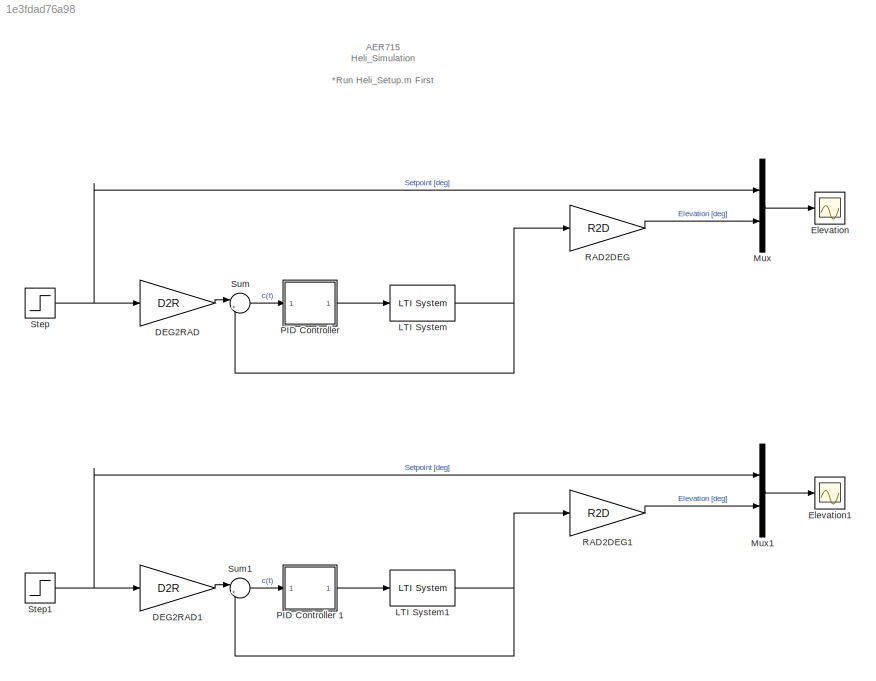
MODEL slx_1e3fdad76a98
KIND model
CONFIG AbsTol = auto
CONFIG EnableMultiTasking = on
CONFIG FixedStep = .01
CONFIG MaxStep = auto
CONFIG MinStep = auto
CONFIG RelTol = 1e-3
CONFIG SampleTimeConstraint = Unconstrained
CONFIG SolverName = ode1
CONFIG StartTime = 0.0
CONFIG StopTime = 30
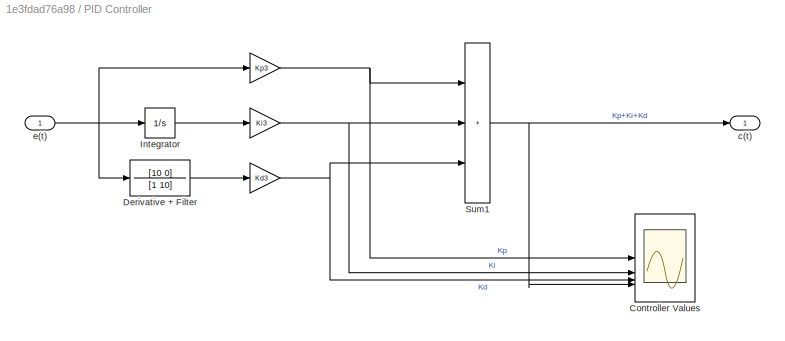
BLOCK [SubSystem]  PID Controller 
BLOCK [Gain]  PID Controller / 
  Gain = Kp3
BLOCK [Gain]  PID Controller /  
  Gain = Ki3
BLOCK [Gain]  PID Controller /   
  Gain = Kd3
BLOCK [Scope]  PID Controller /Controller Values
  Floating = off
  NumInputPorts = 4
  ScopeSpecificationString = C++SS(StrPVP('Location','[2244, 262, 3033, 896]'),StrPVP('Open','off'),MxPVP('AxesTitles',54,'struct(''axes1'',''%<SignalLabel>'',''axes2'',''%<SignalLabel>'',''axes3'',''%<SignalLabel>'',''axes4'',''%<SignalLabel>'')'),MxPVP('ScopeGraphics',57,'struct(''FigureColor'',''[0.501960784313725 0.501960784313725 0.501960784313725]'',''AxesColor'',''[1 1 1]'',''AxesTickColor'',''[0 0 0]'',''LineColors'',...<+496ch>
BLOCK [TransferFcn]  PID Controller /Derivative + Filter
  Denominator = [1 10]
  Numerator = [10 0]
BLOCK [Integrator]  PID Controller /Integrator
  LowerSaturationLimit = -30
  UpperSaturationLimit = 30
BLOCK [Sum]  PID Controller /Sum1
  IconShape = rectangular
  Inputs = +++
BLOCK [Outport]  PID Controller /c(t)
BLOCK [Inport]  PID Controller /e(t)
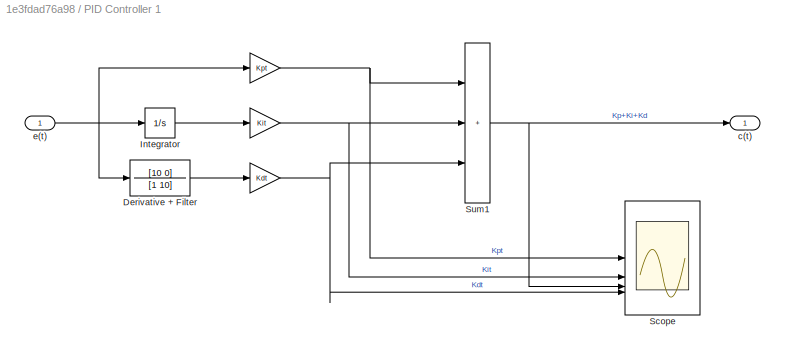
BLOCK [SubSystem]  PID Controller 1
BLOCK [Gain]  PID Controller 1/ 
  Gain = Kpt
BLOCK [Gain]  PID Controller 1/  
  Gain = Kit
BLOCK [Gain]  PID Controller 1/   
  Gain = Kdt
BLOCK [TransferFcn]  PID Controller 1/Derivative + Filter
  Denominator = [1 10]
  Numerator = [10 0]
BLOCK [Integrator]  PID Controller 1/Integrator
  LowerSaturationLimit = -30
  UpperSaturationLimit = 30
BLOCK [Scope]  PID Controller 1/Scope
  Floating = off
  NumInputPorts = 4
  ScopeSpecificationString = Simulink.scopes.TimeScopeBlockCfg('CurrentConfiguration', extmgr.ConfigurationSet(extmgr.Configuration('Core','General UI',true),extmgr.Configuration('Core','Source UI',true),extmgr.Configuration('Sources','WiredSimulink',true,'DataLoggingVariableName','ScopeData2'),extmgr.Configuration('Visuals','Time Domain',true),extmgr.Configuration('Tools','Plot Navigation',true),extmgr.Configuration('Tools',...<+40ch>
BLOCK [Sum]  PID Controller 1/Sum1
  IconShape = rectangular
  Inputs = +++
BLOCK [Outport]  PID Controller 1/c(t)
BLOCK [Inport]  PID Controller 1/e(t)
BLOCK [Gain] DEG2RAD
  Gain = D2R
BLOCK [Gain] DEG2RAD1
  Gain = D2R
BLOCK [Scope] Elevation
  Floating = off
  NumInputPorts = 1
  ScopeSpecificationString = Simulink.scopes.TimeScopeBlockCfg('CurrentConfiguration', extmgr.ConfigurationSet(extmgr.Configuration('Core','General UI',true,'FigureColor',[0.501960784313725 0.501960784313725 0.501960784313725]),extmgr.Configuration('Core','Source UI',true),extmgr.Configuration('Sources','WiredSimulink',true,'DataLoggingSaveFormat','StructureWithTime','DataLoggingDecimation','1','DataLoggingDecimateData',true)...<+2696ch>
BLOCK [Scope] Elevation1
  Floating = off
  NumInputPorts = 1
  ScopeSpecificationString = Simulink.scopes.TimeScopeBlockCfg('CurrentConfiguration', extmgr.ConfigurationSet(extmgr.Configuration('Core','General UI',true,'FigureColor',[0.501960784313725 0.501960784313725 0.501960784313725]),extmgr.Configuration('Core','Source UI',true),extmgr.Configuration('Sources','WiredSimulink',true,'DataLoggingSaveFormat','StructureWithTime','DataLoggingDecimation','1','DataLoggingDecimateData',true,...<+2735ch>
BLOCK [Reference] LTI System  REF=cstblocks/LTI System
  SourceBlock = cstblocks/LTI System
  SourceType = LTI Block
BLOCK [Reference] LTI System1  REF=cstblocks/LTI System
  SourceBlock = cstblocks/LTI System
  SourceType = LTI Block
BLOCK [Mux] Mux
  DisplayOption = bar
  Inputs = 2
BLOCK [Mux] Mux1
  DisplayOption = bar
  Inputs = 2
BLOCK [Gain] RAD2DEG
  Gain = R2D
BLOCK [Gain] RAD2DEG1
  Gain = R2D
BLOCK [Step] Step
  After = ELEV_SLF
  SampleTime = .01
BLOCK [Step] Step1
  After = TRAV_SS
  SampleTime = .01
  Time = 25
BLOCK [Sum] Sum
  Inputs = |+-
BLOCK [Sum] Sum1
  Inputs = |+-
ANNOTATION (root): AER715 Heli_Simulation *Run Heli_Setup.m First
NET  PID Controller /   :1 ->  PID Controller /Controller Values:3,  PID Controller /Sum1:3
NET  PID Controller /  :1 ->  PID Controller /Controller Values:2,  PID Controller /Sum1:2
NET  PID Controller / :1 ->  PID Controller /Controller Values:1,  PID Controller /Sum1:1
LINE  PID Controller /Derivative + Filter:1 ->  PID Controller /   :1
LINE  PID Controller /Integrator:1 ->  PID Controller /  :1
NET  PID Controller /Sum1:1 ->  PID Controller /Controller Values:4,  PID Controller /c(t):1
NET  PID Controller /e(t):1 ->  PID Controller / :1,  PID Controller /Derivative + Filter:1,  PID Controller /Integrator:1
NET  PID Controller 1/   :1 ->  PID Controller 1/Scope:4,  PID Controller 1/Sum1:3
NET  PID Controller 1/  :1 ->  PID Controller 1/Scope:2,  PID Controller 1/Sum1:2
NET  PID Controller 1/ :1 ->  PID Controller 1/Scope:1,  PID Controller 1/Sum1:1
LINE  PID Controller 1/Derivative + Filter:1 ->  PID Controller 1/   :1
LINE  PID Controller 1/Integrator:1 ->  PID Controller 1/  :1
NET  PID Controller 1/Sum1:1 ->  PID Controller 1/Scope:3,  PID Controller 1/c(t):1
NET  PID Controller 1/e(t):1 ->  PID Controller 1/ :1,  PID Controller 1/Derivative + Filter:1,  PID Controller 1/Integrator:1
LINE  PID Controller 1:1 -> LTI System1:1
LINE  PID Controller :1 -> LTI System:1
LINE DEG2RAD1:1 -> Sum1:1
LINE DEG2RAD:1 -> Sum:1
NET LTI System1:1 -> RAD2DEG1:1, Sum1:2
NET LTI System:1 -> RAD2DEG:1, Sum:2
LINE Mux1:1 -> Elevation1:1
LINE Mux:1 -> Elevation:1
LINE RAD2DEG1:1 -> Mux1:2
LINE RAD2DEG:1 -> Mux:2
NET Step1:1 -> DEG2RAD1:1, Mux1:1
NET Step:1 -> DEG2RAD:1, Mux:1
LINE Sum1:1 ->  PID Controller 1:1
LINE Sum:1 ->  PID Controller :1
note: NET lines group one-source signal fan-out (src -> all destinations, sorted); 1:1 wires keep LINE
